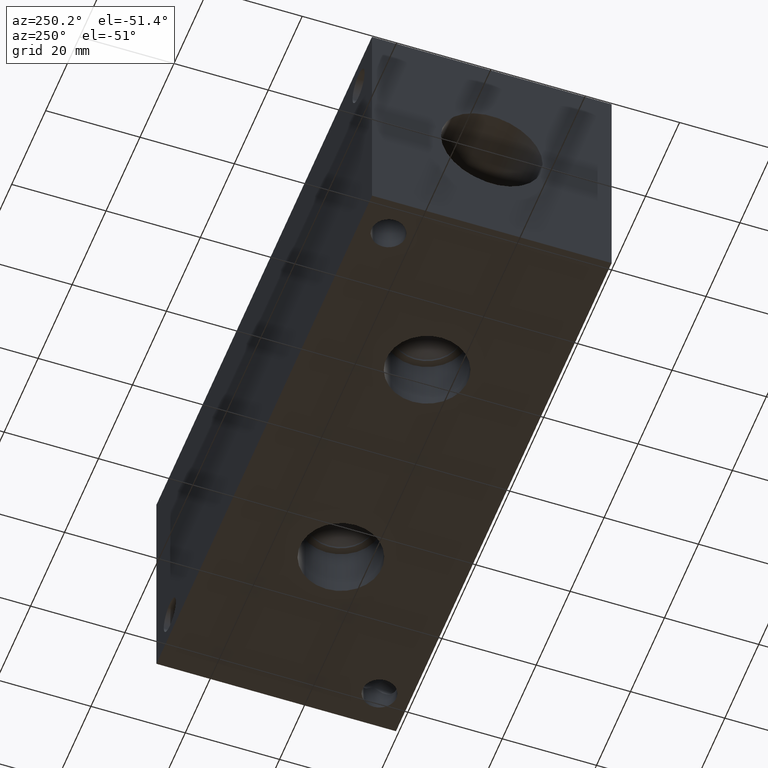
[diagram: clean part render]
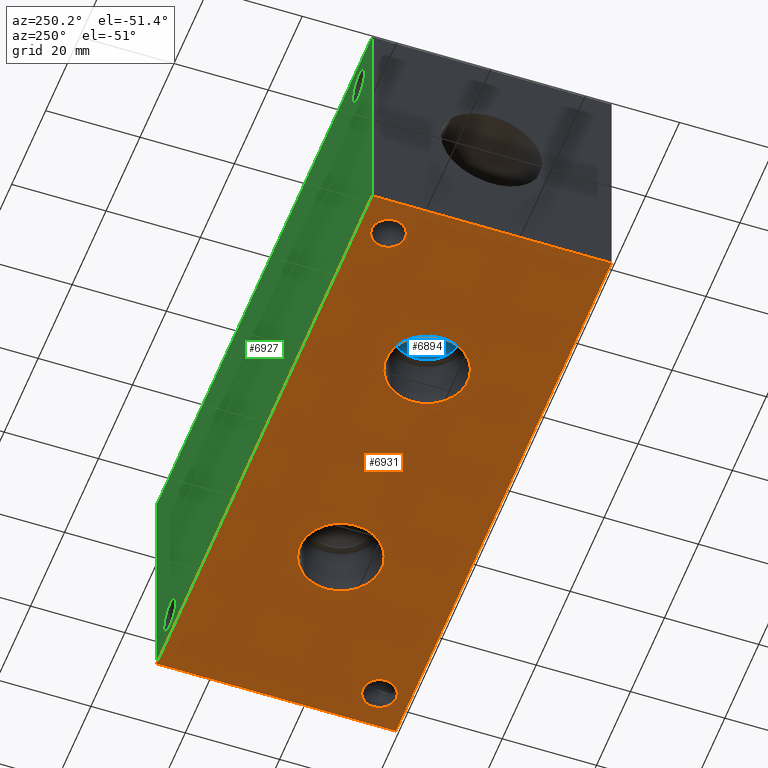
[diagram: same view with three faces highlighted in distinct colors, each labeled with its STEP entity id]
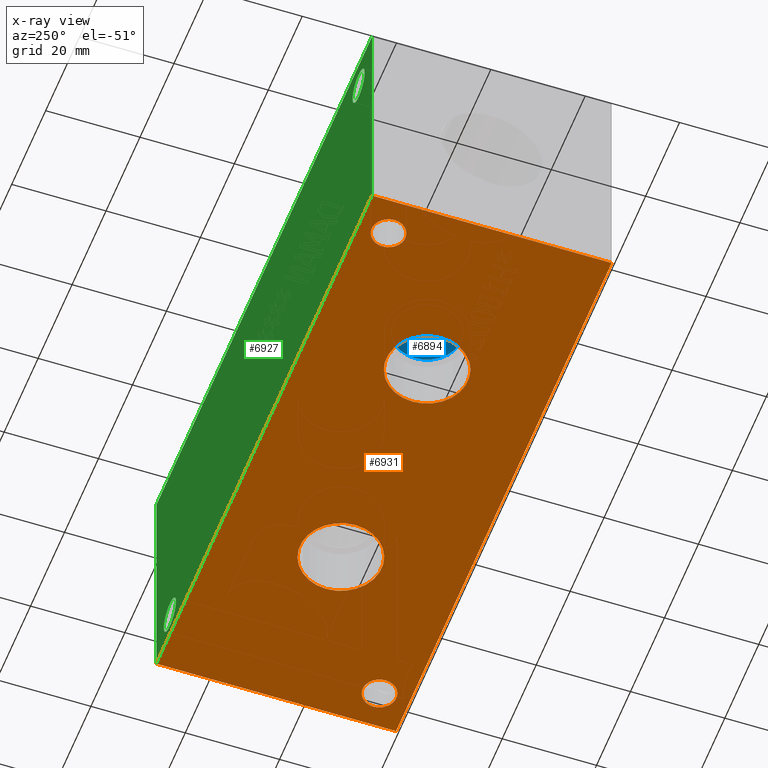
[diagram: x-ray of the same camera — body ghosted, the three highlighted faces saturated]
A machine part, auxiliary view with three faces highlighted in distinct colors.
The next image is the same camera in x-ray (body ghosted, the three faces saturated) — at least one of them is partly hidden behind the body in this view.
Their STEP definitions:

[orange] entity #6931 — the highlighted planar face has unit normal (0, 0, 1).
#61=CIRCLE('',#7172,8.6487);
#62=CIRCLE('',#7173,8.6487);
#68=CIRCLE('',#7183,8.6487);
#69=CIRCLE('',#7184,8.6487);
#100=CIRCLE('',#7247,3.5687);
#101=CIRCLE('',#7249,3.5687);
#453=FACE_BOUND('',#1202,.T.);
#454=FACE_BOUND('',#1203,.T.);
#455=FACE_BOUND('',#1204,.T.);
#456=FACE_BOUND('',#1205,.T.);
#806=FACE_OUTER_BOUND('',#1201,.T.);
#1201=EDGE_LOOP('',(#6047,#6048,#6049,#6050));
#1202=EDGE_LOOP('',(#6051,#6052));
#1203=EDGE_LOOP('',(#6053,#6054));
#1204=EDGE_LOOP('',(#6055));
#1205=EDGE_LOOP('',(#6056));
#1881=LINE('',#11810,#2564);
#1884=LINE('',#11815,#2567);
#1886=LINE('',#11819,#2569);
#1888=LINE('',#11822,#2571);
#2564=VECTOR('',#8543,10.);
#2567=VECTOR('',#8548,10.);
#2569=VECTOR('',#8552,10.);
#2571=VECTOR('',#8556,10.);
#3156=VERTEX_POINT('',#11654);
#3157=VERTEX_POINT('',#11655);
#3164=VERTEX_POINT('',#11676);
#3165=VERTEX_POINT('',#11677);
#3204=VERTEX_POINT('',#11800);
#3205=VERTEX_POINT('',#11804);
#3206=VERTEX_POINT('',#11808);
#3207=VERTEX_POINT('',#11809);
#3208=VERTEX_POINT('',#11814);
#3209=VERTEX_POINT('',#11818);
#4077=EDGE_CURVE('',#3156,#3157,#61,.T.);
#4078=EDGE_CURVE('',#3157,#3156,#62,.T.);
#4087=EDGE_CURVE('',#3164,#3165,#68,.T.);
#4088=EDGE_CURVE('',#3165,#3164,#69,.T.);
#4148=EDGE_CURVE('',#3204,#3204,#100,.T.);
#4150=EDGE_CURVE('',#3205,#3205,#101,.T.);
#4151=EDGE_CURVE('',#3206,#3207,#1881,.T.);
#4154=EDGE_CURVE('',#3208,#3206,#1884,.T.);
#4156=EDGE_CURVE('',#3209,#3208,#1886,.T.);
#4158=EDGE_CURVE('',#3207,#3209,#1888,.T.);
#6047=ORIENTED_EDGE('',*,*,#4158,.F.);
#6048=ORIENTED_EDGE('',*,*,#4151,.F.);
#6049=ORIENTED_EDGE('',*,*,#4154,.F.);
#6050=ORIENTED_EDGE('',*,*,#4156,.F.);
#6051=ORIENTED_EDGE('',*,*,#4077,.T.);
#6052=ORIENTED_EDGE('',*,*,#4078,.T.);
#6053=ORIENTED_EDGE('',*,*,#4087,.T.);
#6054=ORIENTED_EDGE('',*,*,#4088,.T.);
#6055=ORIENTED_EDGE('',*,*,#4148,.T.);
#6056=ORIENTED_EDGE('',*,*,#4150,.T.);
#6278=PLANE('',#7255);
#6931=ADVANCED_FACE('',(#806,#453,#454,#455,#456),#6278,.F.);
#7172=AXIS2_PLACEMENT_3D('',#11656,#8360,#8361);
#7173=AXIS2_PLACEMENT_3D('',#11657,#8362,#8363);
#7183=AXIS2_PLACEMENT_3D('',#11678,#8385,#8386);
#7184=AXIS2_PLACEMENT_3D('',#11679,#8387,#8388);
#7247=AXIS2_PLACEMENT_3D('',#11802,#8534,#8535);
#7249=AXIS2_PLACEMENT_3D('',#11806,#8539,#8540);
#7255=AXIS2_PLACEMENT_3D('',#11824,#8559,#8560);
#8360=DIRECTION('center_axis',(0.,0.,1.));
#8361=DIRECTION('ref_axis',(1.,0.,0.));
#8362=DIRECTION('center_axis',(0.,0.,1.));
#8363=DIRECTION('ref_axis',(1.,0.,0.));
#8385=DIRECTION('center_axis',(0.,0.,1.));
#8386=DIRECTION('ref_axis',(1.,0.,0.));
#8387=DIRECTION('center_axis',(0.,0.,1.));
#8388=DIRECTION('ref_axis',(1.,0.,0.));
#8534=DIRECTION('center_axis',(0.,0.,1.));
#8535=DIRECTION('ref_axis',(1.,0.,0.));
#8539=DIRECTION('center_axis',(0.,0.,1.));
#8540=DIRECTION('ref_axis',(1.,0.,0.));
#8543=DIRECTION('',(0.,-1.,0.));
#8548=DIRECTION('',(-1.,0.,0.));
#8552=DIRECTION('',(0.,1.,0.));
#8556=DIRECTION('',(1.,0.,0.));
#8559=DIRECTION('center_axis',(0.,0.,1.));
#8560=DIRECTION('ref_axis',(1.,0.,0.));
#11654=CARTESIAN_POINT('',(46.7487,25.4,0.));
#11655=CARTESIAN_POINT('',(29.4513,25.4,0.));
#11656=CARTESIAN_POINT('Origin',(38.1,25.4,0.));
#11657=CARTESIAN_POINT('Origin',(38.1,25.4,0.));
#11676=CARTESIAN_POINT('',(97.5487,25.4,0.));
#11677=CARTESIAN_POINT('',(80.2513,25.4,0.));
#11678=CARTESIAN_POINT('Origin',(88.9,25.4,0.));
#11679=CARTESIAN_POINT('Origin',(88.9,25.4,0.));
#11800=CARTESIAN_POINT('',(4.3561,44.45,0.));
#11802=CARTESIAN_POINT('Origin',(7.9248,44.45,0.));
#11804=CARTESIAN_POINT('',(115.5065,6.35,0.));
#11806=CARTESIAN_POINT('Origin',(119.0752,6.35,0.));
#11808=CARTESIAN_POINT('',(0.,50.8,0.));
#11809=CARTESIAN_POINT('',(0.,0.,0.));
#11810=CARTESIAN_POINT('',(0.,50.8,0.));
#11814=CARTESIAN_POINT('',(127.,50.8,0.));
#11815=CARTESIAN_POINT('',(127.,50.8,0.));
#11818=CARTESIAN_POINT('',(127.,0.,0.));
#11819=CARTESIAN_POINT('',(127.,0.,0.));
#11822=CARTESIAN_POINT('',(0.,0.,0.));
#11824=CARTESIAN_POINT('Origin',(63.5,25.4,0.));

[blue] entity #6894 — the highlighted conical surface has half-angle 60 deg.
#42=CONICAL_SURFACE('',#7164,3.57505,1.0471975511966);
#56=CIRCLE('',#7165,7.1501);
#57=CIRCLE('',#7166,7.1501);
#769=FACE_OUTER_BOUND('',#1152,.T.);
#1152=EDGE_LOOP('',(#5862,#5863,#5864,#5865));
#1855=LINE('',#11644,#2538);
#2538=VECTOR('',#8347,3.57505);
#3150=VERTEX_POINT('',#11640);
#3151=VERTEX_POINT('',#11641);
#3152=VERTEX_POINT('',#11643);
#4071=EDGE_CURVE('',#3150,#3151,#56,.T.);
#4072=EDGE_CURVE('',#3151,#3152,#1855,.T.);
#4073=EDGE_CURVE('',#3151,#3150,#57,.T.);
#5862=ORIENTED_EDGE('',*,*,#4071,.T.);
#5863=ORIENTED_EDGE('',*,*,#4072,.T.);
#5864=ORIENTED_EDGE('',*,*,#4072,.F.);
#5865=ORIENTED_EDGE('',*,*,#4073,.T.);
#6894=ADVANCED_FACE('',(#769),#42,.F.);
#7164=AXIS2_PLACEMENT_3D('',#11639,#8343,#8344);
#7165=AXIS2_PLACEMENT_3D('',#11642,#8345,#8346);
#7166=AXIS2_PLACEMENT_3D('',#11645,#8348,#8349);
#8343=DIRECTION('center_axis',(0.,0.,-1.));
#8344=DIRECTION('ref_axis',(1.,0.,0.));
#8345=DIRECTION('center_axis',(0.,0.,-1.));
#8346=DIRECTION('ref_axis',(1.,0.,0.));
#8347=DIRECTION('',(0.866025403784439,-1.06057523872491E-16,0.5));
#8348=DIRECTION('center_axis',(0.,0.,-1.));
#8349=DIRECTION('ref_axis',(1.,0.,0.));
#11639=CARTESIAN_POINT('Origin',(38.1,25.4,14.2116660798664));
#11640=CARTESIAN_POINT('',(45.2501,25.4,12.14761));
#11641=CARTESIAN_POINT('',(30.9499,25.4,12.14761));
#11642=CARTESIAN_POINT('Origin',(38.1,25.4,12.14761));
#11643=CARTESIAN_POINT('',(38.1,25.4,16.2757221597327));
#11644=CARTESIAN_POINT('',(34.52495,25.4,14.2116660798664));
#11645=CARTESIAN_POINT('Origin',(38.1,25.4,12.14761));

[green] entity #6927 — the highlighted planar face has unit normal (0, 1, 0).
#86=CIRCLE('',#7216,3.5687);
#89=CIRCLE('',#7226,3.5687);
#448=FACE_BOUND('',#1193,.T.);
#449=FACE_BOUND('',#1194,.T.);
#802=FACE_OUTER_BOUND('',#1192,.T.);
#1192=EDGE_LOOP('',(#6020,#6021,#6022,#6023));
#1193=EDGE_LOOP('',(#6024));
#1194=EDGE_LOOP('',(#6025));
#1585=LINE('',#9468,#2268);
#1883=LINE('',#11812,#2566);
#1884=LINE('',#11815,#2567);
#1885=LINE('',#11816,#2568);
#2268=VECTOR('',#7903,10.);
#2566=VECTOR('',#8545,10.);
#2567=VECTOR('',#8548,10.);
#2568=VECTOR('',#8549,10.);
#2836=VERTEX_POINT('',#9465);
#2837=VERTEX_POINT('',#9467);
#3186=VERTEX_POINT('',#11740);
#3191=VERTEX_POINT('',#11758);
#3206=VERTEX_POINT('',#11808);
#3208=VERTEX_POINT('',#11814);
#3605=EDGE_CURVE('',#2836,#2837,#1585,.T.);
#4119=EDGE_CURVE('',#3186,#3186,#86,.T.);
#4129=EDGE_CURVE('',#3191,#3191,#89,.T.);
#4153=EDGE_CURVE('',#3206,#2837,#1883,.T.);
#4154=EDGE_CURVE('',#3208,#3206,#1884,.T.);
#4155=EDGE_CURVE('',#3208,#2836,#1885,.T.);
#6020=ORIENTED_EDGE('',*,*,#4154,.T.);
#6021=ORIENTED_EDGE('',*,*,#4153,.T.);
#6022=ORIENTED_EDGE('',*,*,#3605,.F.);
#6023=ORIENTED_EDGE('',*,*,#4155,.F.);
#6024=ORIENTED_EDGE('',*,*,#4119,.T.);
#6025=ORIENTED_EDGE('',*,*,#4129,.T.);
#6274=PLANE('',#7251);
#6927=ADVANCED_FACE('',(#802,#448,#449),#6274,.T.);
#7216=AXIS2_PLACEMENT_3D('',#11742,#8461,#8462);
#7226=AXIS2_PLACEMENT_3D('',#11760,#8484,#8485);
#7251=AXIS2_PLACEMENT_3D('',#11813,#8546,#8547);
#7903=DIRECTION('',(-1.,0.,0.));
#8461=DIRECTION('center_axis',(0.,-1.,0.));
#8462=DIRECTION('ref_axis',(1.,0.,0.));
#8484=DIRECTION('center_axis',(0.,-1.,0.));
#8485=DIRECTION('ref_axis',(1.,0.,0.));
#8545=DIRECTION('',(0.,0.,1.));
#8546=DIRECTION('center_axis',(0.,1.,0.));
#8547=DIRECTION('ref_axis',(-1.,0.,0.));
#8548=DIRECTION('',(-1.,0.,0.));
#8549=DIRECTION('',(0.,0.,1.));
#9465=CARTESIAN_POINT('',(127.,50.8,50.8));
#9467=CARTESIAN_POINT('',(0.,50.8,50.8));
#9468=CARTESIAN_POINT('',(127.,50.8,50.8));
#11740=CARTESIAN_POINT('',(115.5065,50.8,6.35));
#11742=CARTESIAN_POINT('Origin',(119.0752,50.8,6.35));
#11758=CARTESIAN_POINT('',(4.3561,50.8,44.45));
#11760=CARTESIAN_POINT('Origin',(7.9248,50.8,44.45));
#11808=CARTESIAN_POINT('',(0.,50.8,0.));
#11812=CARTESIAN_POINT('',(0.,50.8,0.));
#11813=CARTESIAN_POINT('Origin',(127.,50.8,0.));
#11814=CARTESIAN_POINT('',(127.,50.8,0.));
#11815=CARTESIAN_POINT('',(127.,50.8,0.));
#11816=CARTESIAN_POINT('',(127.,50.8,0.));